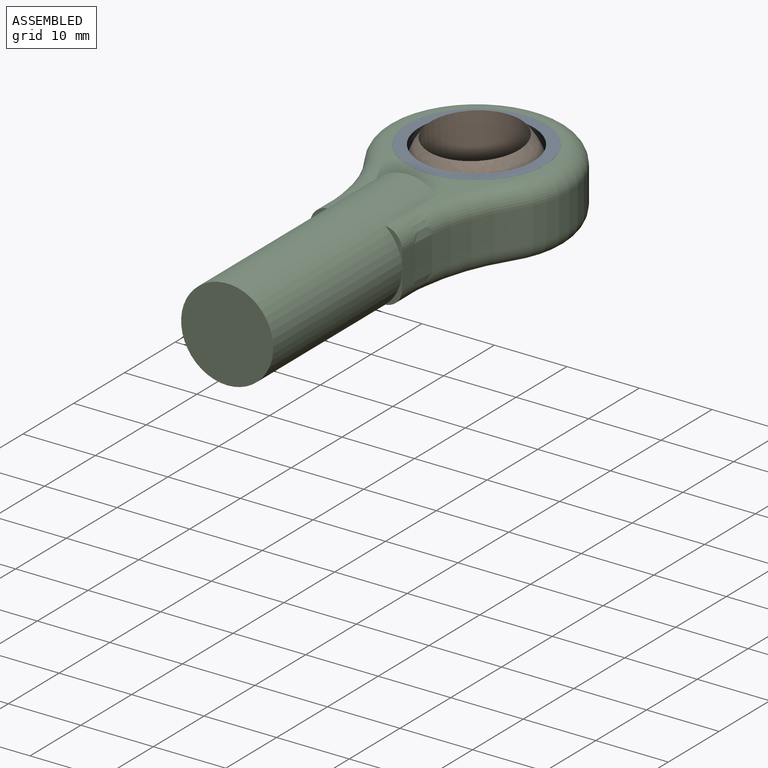
[diagram: assembled view]
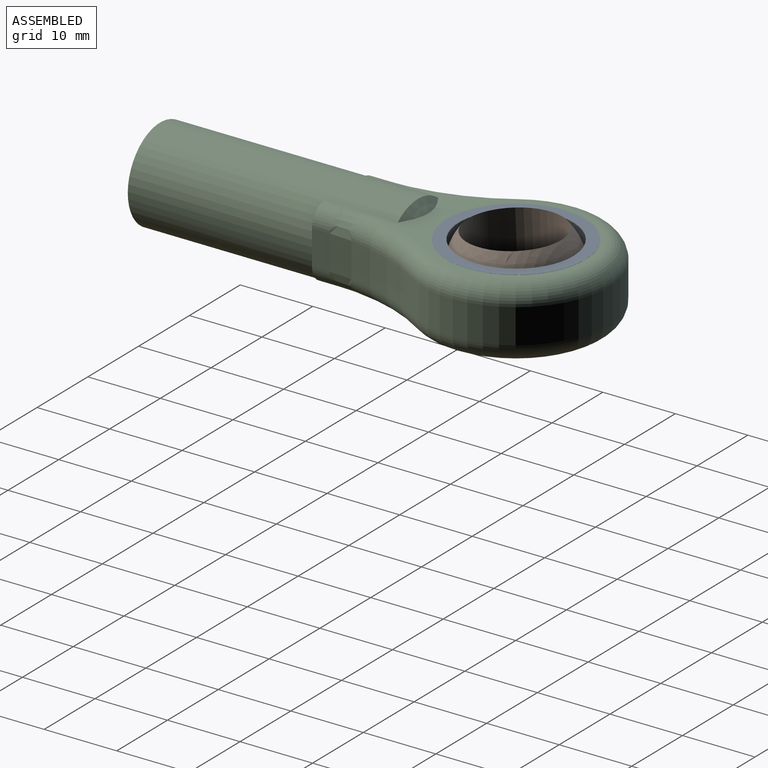
[diagram: assembled view, second angle]
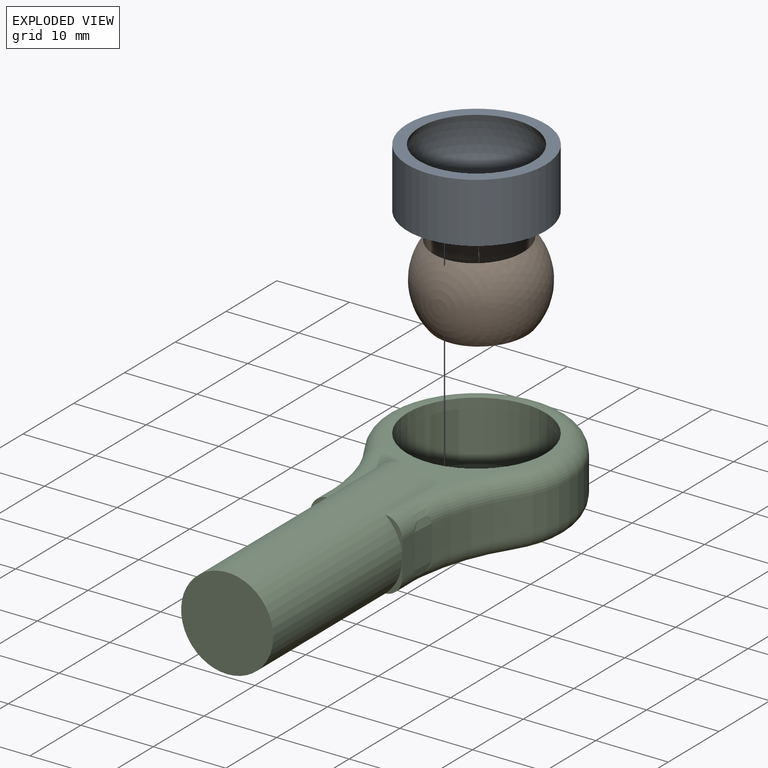
[diagram: exploded view]
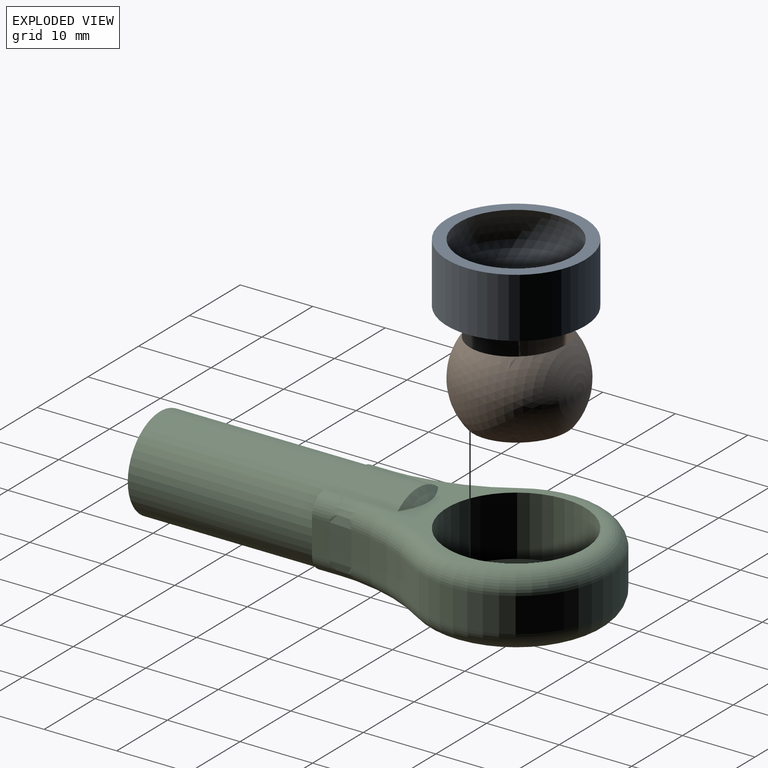
[diagram: exploded view, second angle]
ASSEMBLY  parts=3 mates=2
PART A: 4 faces, bbox 19.1x19.1x8.3 mm
  f0: cylinder r=9.53mm len=19.05mm, axis (0,0,-1), area 494mm2, adj f1,f2
  f1: plane 19.05x19.05mm, normal (0,0,-1), area 90.3mm2, adj f0,f3
  f2: plane 19.05x19.05mm, normal (0,0,1), area 90.3mm2, adj f0,f3
  f3: sphere r=8.89mm, area 461.1mm2, adj f1,f2
PART B: 2 faces, bbox 16.5x16.5x16.5 mm
  f0: sphere r=8.26mm, area 547.2mm2, adj f1
  f1: cylinder r=6.35mm len=12.7mm, axis (0,0,1), area 420.9mm2, adj f0
PART C: 32 faces, bbox 27.5x62.8x12.7 mm
  f0: plane 4.92x2.34mm, normal (0,-1,0), area 2.1mm2, adj f10,f14,f18
  f1: plane 4.92x2.34mm, normal (0,-1,0), area 2.1mm2, adj f10,f14,f25
  f2: plane 4.92x2.34mm, normal (0,-1,0), area 2.1mm2, adj f6,f14,f31
  f3: plane 28.01x20.32mm, normal (0,0,1), area 82.7mm2, adj f11,f14,f17,f27,f28,f29
  f4: plane 28.01x20.32mm, normal (0,0,-1), area 185.3mm2, adj f12,f14,f16,f20,f21,f22
  f5: plane 4.92x2.34mm, normal (0,-1,0), area 2.1mm2, adj f6,f14,f24
  f6: plane 4.78x2.46mm, normal (1,0,0), area 11.7mm2, adj f2,f5,f7,f24,f31
  f7: cylinder r=26.01mm len=14.27mm, axis (0,0,-1), area 72mm2, adj f6,f8,f22,f23,f29,f30
  f8: cylinder r=12.7mm len=25.4mm, axis (0,0,-1), area 260.3mm2, adj f7,f9,f21,f28
  f9: cylinder r=26.01mm len=14.27mm, axis (0,0,-1), area 72mm2, adj f8,f10,f19,f20,f26,f27
  f10: plane 4.78x2.46mm, normal (-1,0,0), area 11.7mm2, adj f0,f1,f9,f18,f25
  f11: cylinder r=9.53mm len=19.05mm, axis (0,0,-1), area 494mm2, adj f3,f13
  f12: cylinder r=7.62mm len=15.24mm, axis (0,0,-1), area 76mm2, adj f4,f13
  f13: plane 19.05x19.05mm, normal (0,0,1), area 102.6mm2, adj f11,f12
  f14: cylinder r=6.35mm len=35.56mm, axis (0,1,0), area 1190mm2, adj f0,f1,f2,f3,f4,f5,f15,f16
  f15: plane 12.7x12.7mm, normal (0,-1,0), area 126.7mm2, adj f14
  f16: cone r=6.35mm half-angle=45deg, axis (0,-1,0), area 11.1mm2, adj f4,f14
  f17: cone r=6.35mm half-angle=45deg, axis (0,-1,0), area 11.1mm2, adj f3,f14
  f18: cylinder r=2.54mm len=2.53mm, axis (0,1,0), area 9.3mm2, adj f0,f10,f14,f19
  f19: bspline ~5.58x2.72mm, area 12.4mm2, adj f9,f14,f18,f20
  f20: torus R=28.55mm, axis (0,0,1), area 49.6mm2, adj f4,f9,f19,f21
  f21: torus R=10.16mm, axis (0,0,1), area 202.2mm2, adj f4,f8,f20,f22
  f22: torus R=28.55mm, axis (0,0,1), area 49.6mm2, adj f4,f7,f21,f23
  f23: bspline ~5.58x2.72mm, area 12.4mm2, adj f7,f14,f22,f24
  f24: cylinder r=2.54mm len=2.53mm, axis (0,1,0), area 9.3mm2, adj f5,f6,f14,f23
  f25: cylinder r=2.54mm len=2.53mm, axis (0,1,0), area 9.3mm2, adj f1,f10,f14,f26
  f26: bspline ~5.58x2.72mm, area 12.4mm2, adj f9,f14,f25,f27
  f27: torus R=28.55mm, axis (0,0,1), area 49.6mm2, adj f3,f9,f26,f28
  f28: torus R=10.16mm, axis (0,0,1), area 202.2mm2, adj f3,f8,f27,f29
  f29: torus R=28.55mm, axis (0,0,1), area 49.6mm2, adj f3,f7,f28,f30
  f30: bspline ~5.58x2.72mm, area 12.4mm2, adj f7,f14,f29,f31
  f31: cylinder r=2.54mm len=2.53mm, axis (0,1,0), area 9.3mm2, adj f2,f6,f14,f30
PLACE A t=(-13.02,17.95,8.29)mm
PLACE B rot(axis=(-1,0,-0.01),177.2deg) t=(-13.02,17.95,12.41)mm
PLACE C t=(-13.02,-20.15,6.69)mm
MATE cylindrical A.f0 <-> C.f11  axis (0,0,-1) through (-13.02,17.95,12.41)mm
MATE ball B.f1 <-> A.f0  axis (0.01,0.05,-1) through (-13.02,17.95,12.41)mm
